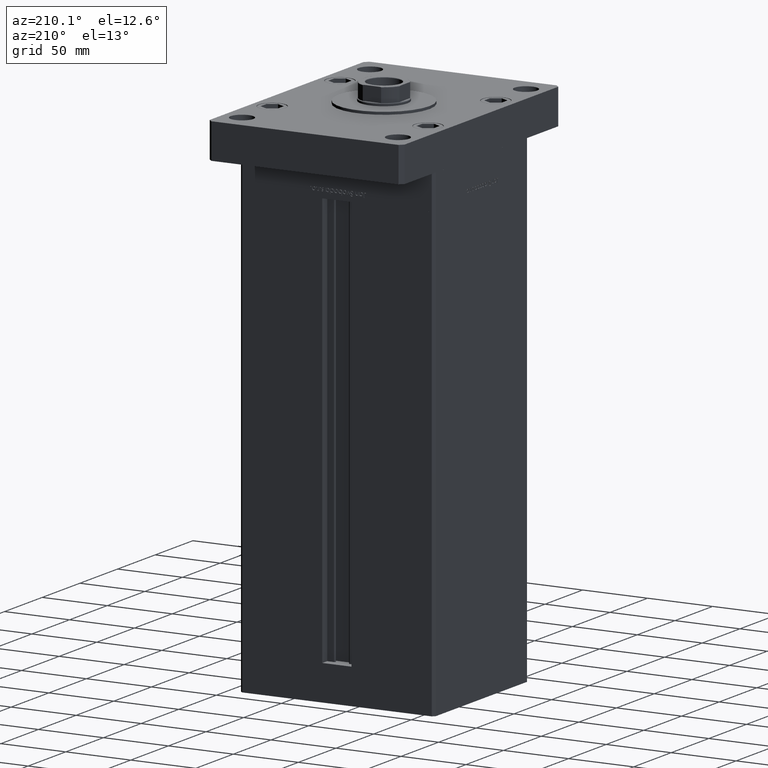
[diagram: clean part render]
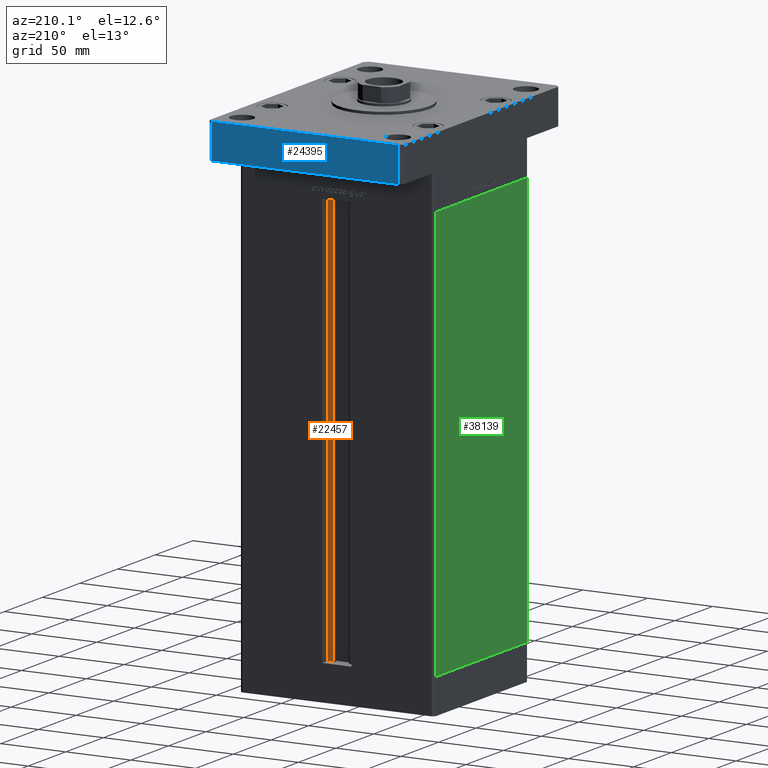
[diagram: same view with three faces highlighted in distinct colors, each labeled with its STEP entity id]
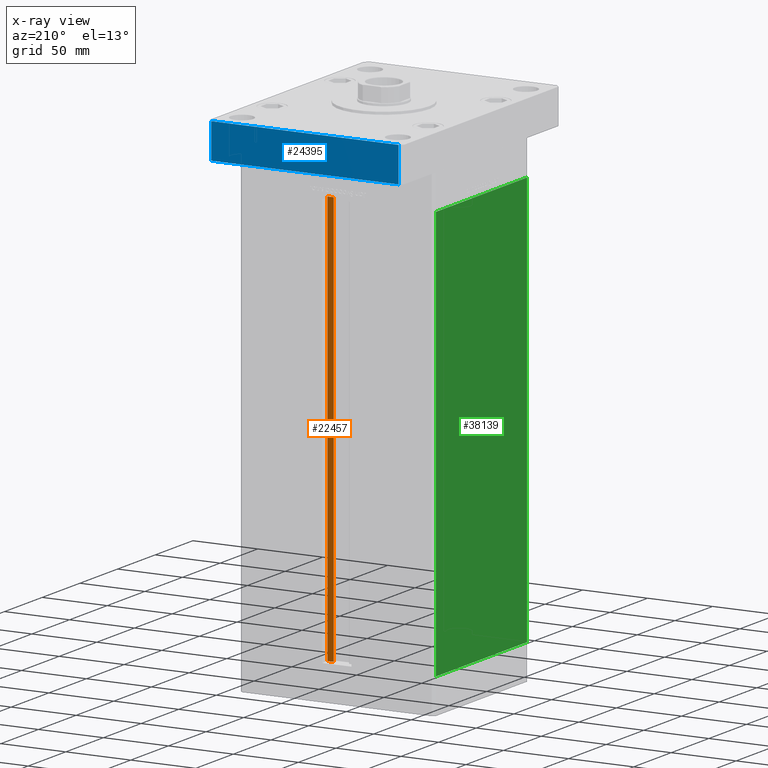
[diagram: x-ray of the same camera — body ghosted, the three highlighted faces saturated]
A machine part, auxiliary view with three faces highlighted in distinct colors.
The next image is the same camera in x-ray (body ghosted, the three faces saturated) — at least one of them is partly hidden behind the body in this view.
Their STEP definitions:

[orange] entity #22457 — the highlighted planar face has unit normal (0, -1, 0).
#10 = DIRECTION ( 'NONE',  ( -1.000000000000000000, 0.000000000000000000, 0.000000000000000000 ) ) ;
#1271 = DIRECTION ( 'NONE',  ( 1.000000000000000000, 0.000000000000000000, 0.000000000000000000 ) ) ;
#3802 = CARTESIAN_POINT ( 'NONE',  ( 0.000000000000000000, 55.99999999999999289, 317.0000000000000000 ) ) ;
#7947 = CARTESIAN_POINT ( 'NONE',  ( 6.183333333334001480, 55.99999999999999289, 0.000000000000000000 ) ) ;
#9430 = DIRECTION ( 'NONE',  ( 0.000000000000000000, -1.000000000000000000, 0.000000000000000000 ) ) ;
#9999 = VECTOR ( 'NONE', #36206, 1000.000000000000000 ) ;
#11899 = VECTOR ( 'NONE', #1271, 1000.000000000000000 ) ;
#12710 = FACE_OUTER_BOUND ( 'NONE', #35375, .T. ) ;
#15359 = LINE ( 'NONE', #31879, #9999 ) ;
#15981 = LINE ( 'NONE', #3802, #52670 ) ;
#20261 = ORIENTED_EDGE ( 'NONE', *, *, #34020, .F. ) ;
#21560 = CARTESIAN_POINT ( 'NONE',  ( 6.183333333334001480, 55.99999999999999289, 0.000000000000000000 ) ) ;
#22457 = ADVANCED_FACE ( 'NONE', ( #12710 ), #29203, .F. ) ;
#23920 = CARTESIAN_POINT ( 'NONE',  ( 11.25000000000000178, 55.99999999999999289, 0.000000000000000000 ) ) ;
#23977 = VERTEX_POINT ( 'NONE', #24743 ) ;
#24743 = CARTESIAN_POINT ( 'NONE',  ( 11.25000000000000178, 55.99999999999999289, 317.0000000000000000 ) ) ;
#25942 = DIRECTION ( 'NONE',  ( 0.000000000000000000, -0.000000000000000000, -1.000000000000000000 ) ) ;
#28519 = LINE ( 'NONE', #7947, #49827 ) ;
#29203 = PLANE ( 'NONE',  #39058 ) ;
#29608 = VERTEX_POINT ( 'NONE', #23920 ) ;
#31879 = CARTESIAN_POINT ( 'NONE',  ( 11.25000000000000178, 55.99999999999999289, 0.000000000000000000 ) ) ;
#32048 = DIRECTION ( 'NONE',  ( -0.000000000000000000, -0.000000000000000000, 1.000000000000000000 ) ) ;
#33855 = CARTESIAN_POINT ( 'NONE',  ( 6.183333333334001480, 55.99999999999999289, 317.0000000000000000 ) ) ;
#34020 = EDGE_CURVE ( 'NONE', #29608, #23977, #15359, .T. ) ;
#35081 = LINE ( 'NONE', #21560, #11899 ) ;
#35375 = EDGE_LOOP ( 'NONE', ( #20261, #51524, #53519, #41679 ) ) ;
#35622 = EDGE_CURVE ( 'NONE', #40830, #36672, #28519, .T. ) ;
#36206 = DIRECTION ( 'NONE',  ( -0.000000000000000000, -0.000000000000000000, 1.000000000000000000 ) ) ;
#36672 = VERTEX_POINT ( 'NONE', #33855 ) ;
#37880 = CARTESIAN_POINT ( 'NONE',  ( 6.183333333334001480, 55.99999999999999289, 0.000000000000000000 ) ) ;
#38776 = EDGE_CURVE ( 'NONE', #40830, #29608, #35081, .T. ) ;
#39058 = AXIS2_PLACEMENT_3D ( 'NONE', #37880, #9430, #25942 ) ;
#40830 = VERTEX_POINT ( 'NONE', #43910 ) ;
#41679 = ORIENTED_EDGE ( 'NONE', *, *, #47792, .F. ) ;
#43910 = CARTESIAN_POINT ( 'NONE',  ( 6.183333333334001480, 55.99999999999999289, 0.000000000000000000 ) ) ;
#47792 = EDGE_CURVE ( 'NONE', #23977, #36672, #15981, .T. ) ;
#49827 = VECTOR ( 'NONE', #32048, 1000.000000000000000 ) ;
#51524 = ORIENTED_EDGE ( 'NONE', *, *, #38776, .F. ) ;
#52670 = VECTOR ( 'NONE', #10, 1000.000000000000000 ) ;
#53519 = ORIENTED_EDGE ( 'NONE', *, *, #35622, .T. ) ;

[blue] entity #24395 — the highlighted planar face has unit normal (0, -1, 0).
#1043 = FACE_OUTER_BOUND ( 'NONE', #45385, .T. ) ;
#5773 = VERTEX_POINT ( 'NONE', #10308 ) ;
#5904 = VECTOR ( 'NONE', #9096, 1000.000000000000000 ) ;
#7905 = VERTEX_POINT ( 'NONE', #50212 ) ;
#8189 = VECTOR ( 'NONE', #28008, 1000.000000000000000 ) ;
#9096 = DIRECTION ( 'NONE',  ( -1.000000000000000000, -1.927470528863118062E-16, 0.000000000000000000 ) ) ;
#9805 = LINE ( 'NONE', #26051, #52743 ) ;
#10308 = CARTESIAN_POINT ( 'NONE',  ( -72.00000000000002842, 105.0000000000000000, 0.000000000000000000 ) ) ;
#10736 = EDGE_CURVE ( 'NONE', #40524, #5773, #31709, .T. ) ;
#12651 = CARTESIAN_POINT ( 'NONE',  ( -72.00000000000002842, 105.0000000000000000, 27.00000000000000000 ) ) ;
#12912 = CARTESIAN_POINT ( 'NONE',  ( 72.00000000000004263, 105.0000000000000284, 27.00000000000000000 ) ) ;
#13708 = ORIENTED_EDGE ( 'NONE', *, *, #17428, .F. ) ;
#17428 = EDGE_CURVE ( 'NONE', #23629, #5773, #9805, .T. ) ;
#17806 = PLANE ( 'NONE',  #49403 ) ;
#18133 = ORIENTED_EDGE ( 'NONE', *, *, #46203, .F. ) ;
#18985 = DIRECTION ( 'NONE',  ( -1.000000000000000000, -1.927470528863118062E-16, 0.000000000000000000 ) ) ;
#23034 = CARTESIAN_POINT ( 'NONE',  ( 72.00000000000004263, 105.0000000000000284, 0.000000000000000000 ) ) ;
#23629 = VERTEX_POINT ( 'NONE', #12651 ) ;
#24395 = ADVANCED_FACE ( 'NONE', ( #1043 ), #17806, .F. ) ;
#25133 = CARTESIAN_POINT ( 'NONE',  ( 72.00000000000004263, 105.0000000000000284, 27.00000000000000000 ) ) ;
#26051 = CARTESIAN_POINT ( 'NONE',  ( -72.00000000000002842, 105.0000000000000000, 27.00000000000000000 ) ) ;
#26183 = ORIENTED_EDGE ( 'NONE', *, *, #10736, .T. ) ;
#27210 = LINE ( 'NONE', #32076, #8189 ) ;
#27595 = EDGE_CURVE ( 'NONE', #7905, #40524, #27210, .T. ) ;
#28008 = DIRECTION ( 'NONE',  ( -0.000000000000000000, -0.000000000000000000, -1.000000000000000000 ) ) ;
#31709 = LINE ( 'NONE', #23034, #36234 ) ;
#32076 = CARTESIAN_POINT ( 'NONE',  ( 72.00000000000004263, 105.0000000000000284, 27.00000000000000000 ) ) ;
#32258 = CARTESIAN_POINT ( 'NONE',  ( 72.00000000000004263, 105.0000000000000284, 0.000000000000000000 ) ) ;
#33475 = ORIENTED_EDGE ( 'NONE', *, *, #27595, .T. ) ;
#36234 = VECTOR ( 'NONE', #18985, 1000.000000000000000 ) ;
#40524 = VERTEX_POINT ( 'NONE', #32258 ) ;
#45385 = EDGE_LOOP ( 'NONE', ( #26183, #13708, #18133, #33475 ) ) ;
#46203 = EDGE_CURVE ( 'NONE', #7905, #23629, #50269, .T. ) ;
#46659 = DIRECTION ( 'NONE',  ( -0.000000000000000000, -0.000000000000000000, -1.000000000000000000 ) ) ;
#49403 = AXIS2_PLACEMENT_3D ( 'NONE', #25133, #50582, #49797 ) ;
#49797 = DIRECTION ( 'NONE',  ( 1.000000000000000000, 1.927470528863118309E-16, 0.000000000000000000 ) ) ;
#50212 = CARTESIAN_POINT ( 'NONE',  ( 72.00000000000004263, 105.0000000000000284, 27.00000000000000000 ) ) ;
#50269 = LINE ( 'NONE', #12912, #5904 ) ;
#50582 = DIRECTION ( 'NONE',  ( 1.927470528863118309E-16, -1.000000000000000000, 0.000000000000000000 ) ) ;
#52743 = VECTOR ( 'NONE', #46659, 1000.000000000000000 ) ;

[green] entity #38139 — the highlighted planar face has unit normal (1, 0, 0).
#2862 = ORIENTED_EDGE ( 'NONE', *, *, #33214, .T. ) ;
#3041 = VECTOR ( 'NONE', #9025, 1000.000000000000000 ) ;
#3204 = CARTESIAN_POINT ( 'NONE',  ( -74.99999999999998579, -60.50000000000000000, 317.0000000000000000 ) ) ;
#4353 = VECTOR ( 'NONE', #6735, 1000.000000000000000 ) ;
#6389 = ORIENTED_EDGE ( 'NONE', *, *, #13730, .F. ) ;
#6735 = DIRECTION ( 'NONE',  ( -0.000000000000000000, -0.000000000000000000, -1.000000000000000000 ) ) ;
#7694 = VERTEX_POINT ( 'NONE', #18301 ) ;
#9025 = DIRECTION ( 'NONE',  ( -0.000000000000000000, -0.000000000000000000, -1.000000000000000000 ) ) ;
#9320 = CARTESIAN_POINT ( 'NONE',  ( -75.00000000000001421, 60.50000000000000000, 317.0000000000000000 ) ) ;
#13730 = EDGE_CURVE ( 'NONE', #22926, #48465, #23506, .T. ) ;
#14377 = FACE_OUTER_BOUND ( 'NONE', #44082, .T. ) ;
#16279 = VERTEX_POINT ( 'NONE', #9320 ) ;
#17647 = DIRECTION ( 'NONE',  ( 2.293849224432141861E-16, -1.000000000000000000, 0.000000000000000000 ) ) ;
#18301 = CARTESIAN_POINT ( 'NONE',  ( -75.00000000000001421, 60.50000000000000000, 0.000000000000000000 ) ) ;
#21434 = CARTESIAN_POINT ( 'NONE',  ( -75.00000000000001421, 60.50000000000000000, 0.000000000000000000 ) ) ;
#22494 = CARTESIAN_POINT ( 'NONE',  ( -75.00000000000001421, 60.50000000000000000, 317.0000000000000000 ) ) ;
#22760 = DIRECTION ( 'NONE',  ( -2.293849224432141861E-16, 1.000000000000000000, 0.000000000000000000 ) ) ;
#22926 = VERTEX_POINT ( 'NONE', #52129 ) ;
#23506 = LINE ( 'NONE', #3204, #4353 ) ;
#25240 = VECTOR ( 'NONE', #17647, 1000.000000000000000 ) ;
#27324 = ORIENTED_EDGE ( 'NONE', *, *, #49500, .F. ) ;
#29295 = DIRECTION ( 'NONE',  ( 2.293849224432141861E-16, -1.000000000000000000, 0.000000000000000000 ) ) ;
#33214 = EDGE_CURVE ( 'NONE', #16279, #7694, #42077, .T. ) ;
#33361 = LINE ( 'NONE', #49892, #42360 ) ;
#34522 = ORIENTED_EDGE ( 'NONE', *, *, #50318, .T. ) ;
#34744 = CARTESIAN_POINT ( 'NONE',  ( -74.99999999999998579, -60.50000000000000000, 0.000000000000000000 ) ) ;
#35213 = PLANE ( 'NONE',  #49057 ) ;
#38139 = ADVANCED_FACE ( 'NONE', ( #14377 ), #35213, .F. ) ;
#42077 = LINE ( 'NONE', #45614, #3041 ) ;
#42360 = VECTOR ( 'NONE', #29295, 1000.000000000000000 ) ;
#42842 = LINE ( 'NONE', #21434, #25240 ) ;
#44082 = EDGE_LOOP ( 'NONE', ( #34522, #6389, #27324, #2862 ) ) ;
#45614 = CARTESIAN_POINT ( 'NONE',  ( -75.00000000000001421, 60.50000000000000000, 317.0000000000000000 ) ) ;
#47433 = DIRECTION ( 'NONE',  ( 1.000000000000000000, 2.293849224432141861E-16, -0.000000000000000000 ) ) ;
#48465 = VERTEX_POINT ( 'NONE', #34744 ) ;
#49057 = AXIS2_PLACEMENT_3D ( 'NONE', #22494, #47433, #22760 ) ;
#49500 = EDGE_CURVE ( 'NONE', #16279, #22926, #33361, .T. ) ;
#49892 = CARTESIAN_POINT ( 'NONE',  ( -75.00000000000001421, 60.50000000000000000, 317.0000000000000000 ) ) ;
#50318 = EDGE_CURVE ( 'NONE', #7694, #48465, #42842, .T. ) ;
#52129 = CARTESIAN_POINT ( 'NONE',  ( -74.99999999999998579, -60.50000000000000000, 317.0000000000000000 ) ) ;